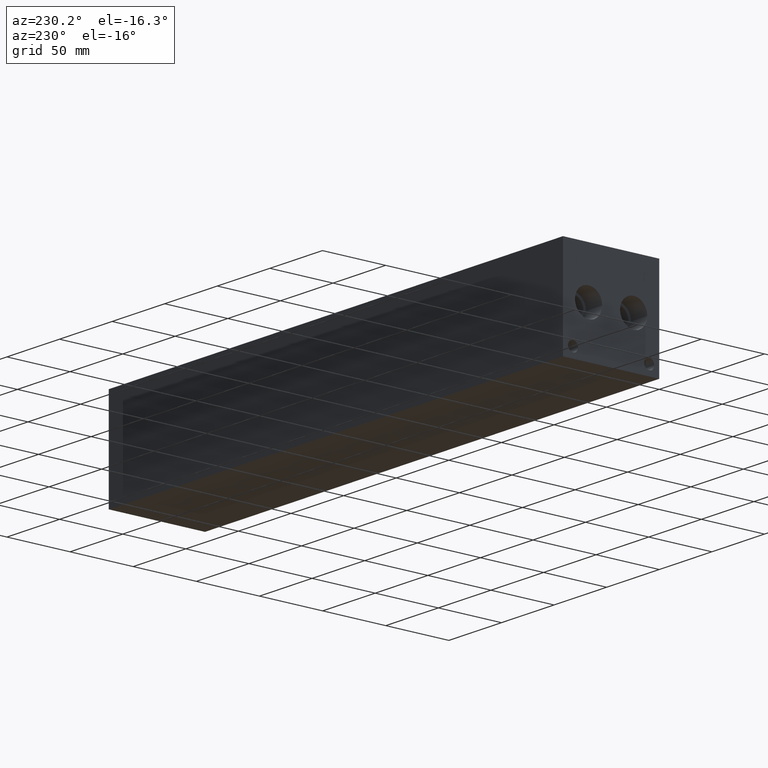
[diagram: clean part render]
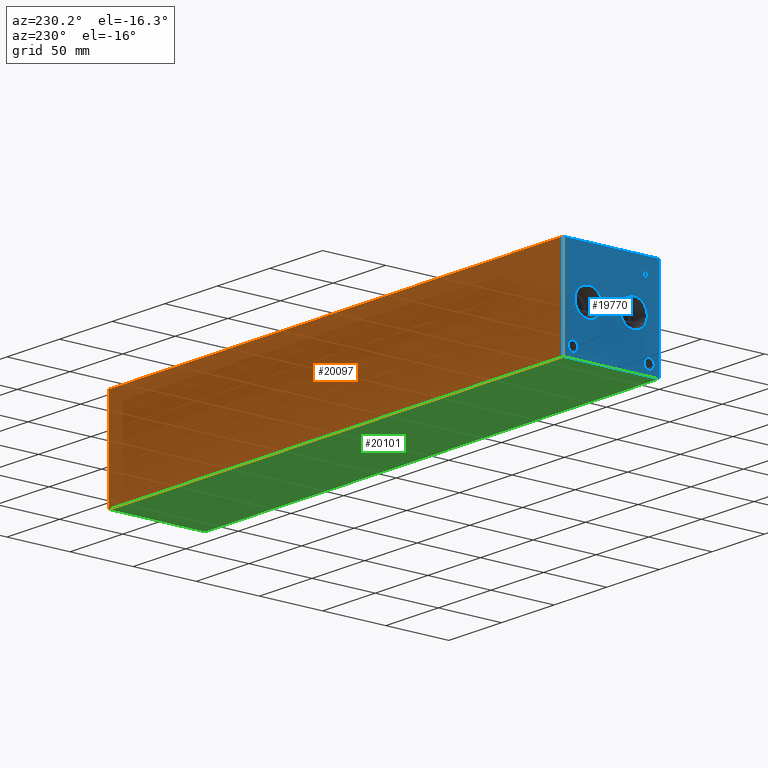
[diagram: same view with three faces highlighted in distinct colors, each labeled with its STEP entity id]
A machine part, auxiliary view with three faces highlighted in distinct colors.
Their STEP definitions:

[orange] entity #20097 — the highlighted planar face has unit normal (0, 1, 0).
#1607=PLANE('',#21478);
#2650=FACE_OUTER_BOUND('',#3852,.T.);
#3852=EDGE_LOOP('',(#17961,#17962,#17963,#17964));
#5292=LINE('',#32860,#7001);
#5352=LINE('',#33133,#7061);
#5636=LINE('',#34915,#7345);
#5637=LINE('',#34916,#7346);
#7001=VECTOR('',#23808,10.);
#7061=VECTOR('',#23922,10.);
#7345=VECTOR('',#25918,10.);
#7346=VECTOR('',#25919,10.);
#9103=VERTEX_POINT('',#32857);
#9104=VERTEX_POINT('',#32859);
#9161=VERTEX_POINT('',#33129);
#9162=VERTEX_POINT('',#33131);
#11680=EDGE_CURVE('',#9103,#9104,#5292,.T.);
#11764=EDGE_CURVE('',#9161,#9162,#5352,.T.);
#12577=EDGE_CURVE('',#9103,#9161,#5636,.T.);
#12578=EDGE_CURVE('',#9104,#9162,#5637,.T.);
#17961=ORIENTED_EDGE('',*,*,#12577,.T.);
#17962=ORIENTED_EDGE('',*,*,#11764,.T.);
#17963=ORIENTED_EDGE('',*,*,#12578,.F.);
#17964=ORIENTED_EDGE('',*,*,#11680,.F.);
#20097=ADVANCED_FACE('',(#2650),#1607,.T.);
#21478=AXIS2_PLACEMENT_3D('',#34914,#25916,#25917);
#23808=DIRECTION('',(0.,0.,1.));
#23922=DIRECTION('',(0.,0.,1.));
#25916=DIRECTION('center_axis',(0.,1.,0.));
#25917=DIRECTION('ref_axis',(-1.,0.,0.));
#25918=DIRECTION('',(-1.,0.,0.));
#25919=DIRECTION('',(-1.,0.,0.));
#32857=CARTESIAN_POINT('',(431.8,76.2,0.));
#32859=CARTESIAN_POINT('',(431.8,76.2,76.2));
#32860=CARTESIAN_POINT('',(431.8,76.2,0.));
#33129=CARTESIAN_POINT('',(0.,76.2,0.));
#33131=CARTESIAN_POINT('',(0.,76.2,76.2));
#33133=CARTESIAN_POINT('',(0.,76.2,0.));
#34914=CARTESIAN_POINT('Origin',(431.8,76.2,0.));
#34915=CARTESIAN_POINT('',(431.8,76.2,0.));
#34916=CARTESIAN_POINT('',(431.8,76.2,76.2));

[blue] entity #19770 — the highlighted planar face has unit normal (-1, 0, 0).
#315=CIRCLE('',#20623,10.795);
#316=CIRCLE('',#20624,10.795);
#317=CIRCLE('',#20625,10.795);
#318=CIRCLE('',#20626,10.795);
#319=CIRCLE('',#20627,3.9624);
#320=CIRCLE('',#20628,3.9624);
#321=CIRCLE('',#20629,3.9624);
#322=CIRCLE('',#20630,3.9624);
#940=FACE_BOUND('',#3463,.T.);
#941=FACE_BOUND('',#3464,.T.);
#942=FACE_BOUND('',#3465,.T.);
#943=FACE_BOUND('',#3466,.T.);
#944=FACE_BOUND('',#3467,.T.);
#945=FACE_BOUND('',#3468,.T.);
#1539=PLANE('',#20622);
#2323=FACE_OUTER_BOUND('',#3462,.T.);
#3462=EDGE_LOOP('',(#16419,#16420,#16421,#16422));
#3463=EDGE_LOOP('',(#16423,#16424));
#3464=EDGE_LOOP('',(#16425,#16426));
#3465=EDGE_LOOP('',(#16427,#16428));
#3466=EDGE_LOOP('',(#16429,#16430));
#3467=EDGE_LOOP('',(#16431,#16432,#16433,#16434,#16435,#16436,#16437,#16438));
#3468=EDGE_LOOP('',(#16439,#16440,#16441,#16442,#16443,#16444,#16445,#16446,
#16447));
#3976=LINE('',#26264,#5685);
#5334=LINE('',#33064,#7043);
#5337=LINE('',#33070,#7046);
#5340=LINE('',#33076,#7049);
#5343=LINE('',#33082,#7052);
#5346=LINE('',#33088,#7055);
#5350=LINE('',#33130,#7059);
#5351=LINE('',#33132,#7060);
#5352=LINE('',#33133,#7061);
#5353=LINE('',#33152,#7062);
#5354=LINE('',#33154,#7063);
#5355=LINE('',#33156,#7064);
#5356=LINE('',#33158,#7065);
#5357=LINE('',#33160,#7066);
#5358=LINE('',#33162,#7067);
#5359=LINE('',#33164,#7068);
#5360=LINE('',#33165,#7069);
#5685=VECTOR('',#21556,10.);
#7043=VECTOR('',#23892,10.);
#7046=VECTOR('',#23897,10.);
#7049=VECTOR('',#23902,10.);
#7052=VECTOR('',#23907,10.);
#7055=VECTOR('',#23912,10.);
#7059=VECTOR('',#23920,10.);
#7060=VECTOR('',#23921,10.);
#7061=VECTOR('',#23922,10.);
#7062=VECTOR('',#23939,10.);
#7063=VECTOR('',#23940,10.);
#7064=VECTOR('',#23941,10.);
#7065=VECTOR('',#23942,10.);
#7066=VECTOR('',#23943,10.);
#7067=VECTOR('',#23944,10.);
#7068=VECTOR('',#23945,10.);
#7069=VECTOR('',#23946,10.);
#7833=B_SPLINE_CURVE_WITH_KNOTS('',2,(#33031,#33032,#33033,#33034),
 .UNSPECIFIED.,.F.,.F.,(3,1,3),(0.,1.,2.),.UNSPECIFIED.);
#7835=B_SPLINE_CURVE_WITH_KNOTS('',2,(#33052,#33053,#33054,#33055),
 .UNSPECIFIED.,.F.,.F.,(3,1,3),(0.,1.,2.),.UNSPECIFIED.);
#7837=B_SPLINE_CURVE_WITH_KNOTS('',2,(#33101,#33102,#33103,#33104),
 .UNSPECIFIED.,.F.,.F.,(3,1,3),(0.,1.,2.),.UNSPECIFIED.);
#7839=B_SPLINE_CURVE_WITH_KNOTS('',2,(#33119,#33120,#33121,#33122),
 .UNSPECIFIED.,.F.,.F.,(3,1,3),(0.,1.,2.),.UNSPECIFIED.);
#7889=VERTEX_POINT('',#26257);
#7892=VERTEX_POINT('',#26262);
#9143=VERTEX_POINT('',#33029);
#9144=VERTEX_POINT('',#33030);
#9147=VERTEX_POINT('',#33051);
#9149=VERTEX_POINT('',#33063);
#9151=VERTEX_POINT('',#33069);
#9153=VERTEX_POINT('',#33075);
#9155=VERTEX_POINT('',#33081);
#9157=VERTEX_POINT('',#33087);
#9159=VERTEX_POINT('',#33100);
#9161=VERTEX_POINT('',#33129);
#9162=VERTEX_POINT('',#33131);
#9163=VERTEX_POINT('',#33134);
#9164=VERTEX_POINT('',#33135);
#9165=VERTEX_POINT('',#33138);
#9166=VERTEX_POINT('',#33139);
#9167=VERTEX_POINT('',#33142);
#9168=VERTEX_POINT('',#33143);
#9169=VERTEX_POINT('',#33146);
#9170=VERTEX_POINT('',#33147);
#9171=VERTEX_POINT('',#33150);
#9172=VERTEX_POINT('',#33151);
#9173=VERTEX_POINT('',#33153);
#9174=VERTEX_POINT('',#33155);
#9175=VERTEX_POINT('',#33157);
#9176=VERTEX_POINT('',#33159);
#9177=VERTEX_POINT('',#33161);
#9178=VERTEX_POINT('',#33163);
#9880=EDGE_CURVE('',#7889,#7892,#3976,.T.);
#11735=EDGE_CURVE('',#9143,#9144,#7833,.T.);
#11739=EDGE_CURVE('',#9147,#9143,#7835,.T.);
#11742=EDGE_CURVE('',#9149,#9147,#5334,.T.);
#11745=EDGE_CURVE('',#9151,#9149,#5337,.T.);
#11748=EDGE_CURVE('',#9153,#9151,#5340,.T.);
#11751=EDGE_CURVE('',#9155,#9153,#5343,.T.);
#11754=EDGE_CURVE('',#9157,#9155,#5346,.T.);
#11757=EDGE_CURVE('',#9159,#9157,#7837,.T.);
#11760=EDGE_CURVE('',#9144,#9159,#7839,.T.);
#11762=EDGE_CURVE('',#9161,#7889,#5350,.T.);
#11763=EDGE_CURVE('',#9162,#7892,#5351,.T.);
#11764=EDGE_CURVE('',#9161,#9162,#5352,.T.);
#11765=EDGE_CURVE('',#9163,#9164,#315,.T.);
#11766=EDGE_CURVE('',#9164,#9163,#316,.T.);
#11767=EDGE_CURVE('',#9165,#9166,#317,.T.);
#11768=EDGE_CURVE('',#9166,#9165,#318,.T.);
#11769=EDGE_CURVE('',#9167,#9168,#319,.T.);
#11770=EDGE_CURVE('',#9168,#9167,#320,.T.);
#11771=EDGE_CURVE('',#9169,#9170,#321,.T.);
#11772=EDGE_CURVE('',#9170,#9169,#322,.T.);
#11773=EDGE_CURVE('',#9171,#9172,#5353,.T.);
#11774=EDGE_CURVE('',#9172,#9173,#5354,.T.);
#11775=EDGE_CURVE('',#9173,#9174,#5355,.T.);
#11776=EDGE_CURVE('',#9174,#9175,#5356,.T.);
#11777=EDGE_CURVE('',#9175,#9176,#5357,.T.);
#11778=EDGE_CURVE('',#9176,#9177,#5358,.T.);
#11779=EDGE_CURVE('',#9177,#9178,#5359,.T.);
#11780=EDGE_CURVE('',#9178,#9171,#5360,.T.);
#16419=ORIENTED_EDGE('',*,*,#11762,.T.);
#16420=ORIENTED_EDGE('',*,*,#9880,.T.);
#16421=ORIENTED_EDGE('',*,*,#11763,.F.);
#16422=ORIENTED_EDGE('',*,*,#11764,.F.);
#16423=ORIENTED_EDGE('',*,*,#11765,.T.);
#16424=ORIENTED_EDGE('',*,*,#11766,.T.);
#16425=ORIENTED_EDGE('',*,*,#11767,.T.);
#16426=ORIENTED_EDGE('',*,*,#11768,.T.);
#16427=ORIENTED_EDGE('',*,*,#11769,.T.);
#16428=ORIENTED_EDGE('',*,*,#11770,.T.);
#16429=ORIENTED_EDGE('',*,*,#11771,.T.);
#16430=ORIENTED_EDGE('',*,*,#11772,.T.);
#16431=ORIENTED_EDGE('',*,*,#11773,.T.);
#16432=ORIENTED_EDGE('',*,*,#11774,.T.);
#16433=ORIENTED_EDGE('',*,*,#11775,.T.);
#16434=ORIENTED_EDGE('',*,*,#11776,.T.);
#16435=ORIENTED_EDGE('',*,*,#11777,.T.);
#16436=ORIENTED_EDGE('',*,*,#11778,.T.);
#16437=ORIENTED_EDGE('',*,*,#11779,.T.);
#16438=ORIENTED_EDGE('',*,*,#11780,.T.);
#16439=ORIENTED_EDGE('',*,*,#11735,.T.);
#16440=ORIENTED_EDGE('',*,*,#11760,.T.);
#16441=ORIENTED_EDGE('',*,*,#11757,.T.);
#16442=ORIENTED_EDGE('',*,*,#11754,.T.);
#16443=ORIENTED_EDGE('',*,*,#11751,.T.);
#16444=ORIENTED_EDGE('',*,*,#11748,.T.);
#16445=ORIENTED_EDGE('',*,*,#11745,.T.);
#16446=ORIENTED_EDGE('',*,*,#11742,.T.);
#16447=ORIENTED_EDGE('',*,*,#11739,.T.);
#19770=ADVANCED_FACE('',(#2323,#940,#941,#942,#943,#944,#945),#1539,.T.);
#20622=AXIS2_PLACEMENT_3D('',#33128,#23918,#23919);
#20623=AXIS2_PLACEMENT_3D('',#33136,#23923,#23924);
#20624=AXIS2_PLACEMENT_3D('',#33137,#23925,#23926);
#20625=AXIS2_PLACEMENT_3D('',#33140,#23927,#23928);
#20626=AXIS2_PLACEMENT_3D('',#33141,#23929,#23930);
#20627=AXIS2_PLACEMENT_3D('',#33144,#23931,#23932);
#20628=AXIS2_PLACEMENT_3D('',#33145,#23933,#23934);
#20629=AXIS2_PLACEMENT_3D('',#33148,#23935,#23936);
#20630=AXIS2_PLACEMENT_3D('',#33149,#23937,#23938);
#21556=DIRECTION('',(0.,0.,1.));
#23892=DIRECTION('',(0.,-1.,0.));
#23897=DIRECTION('',(0.,-3.14708893596576E-15,1.));
#23902=DIRECTION('',(0.,1.,0.));
#23907=DIRECTION('',(0.,3.75218139805001E-15,-1.));
#23912=DIRECTION('',(0.,1.,0.));
#23918=DIRECTION('center_axis',(-1.,0.,0.));
#23919=DIRECTION('ref_axis',(0.,-1.,0.));
#23920=DIRECTION('',(0.,-1.,0.));
#23921=DIRECTION('',(0.,-1.,0.));
#23922=DIRECTION('',(0.,0.,1.));
#23923=DIRECTION('center_axis',(1.,0.,0.));
#23924=DIRECTION('ref_axis',(0.,1.,0.));
#23925=DIRECTION('center_axis',(1.,0.,0.));
#23926=DIRECTION('ref_axis',(0.,1.,0.));
#23927=DIRECTION('center_axis',(1.,0.,0.));
#23928=DIRECTION('ref_axis',(0.,1.,0.));
#23929=DIRECTION('center_axis',(1.,0.,0.));
#23930=DIRECTION('ref_axis',(0.,1.,0.));
#23931=DIRECTION('center_axis',(1.,0.,0.));
#23932=DIRECTION('ref_axis',(0.,1.,0.));
#23933=DIRECTION('center_axis',(1.,0.,0.));
#23934=DIRECTION('ref_axis',(0.,1.,0.));
#23935=DIRECTION('center_axis',(1.,0.,0.));
#23936=DIRECTION('ref_axis',(0.,1.,0.));
#23937=DIRECTION('center_axis',(1.,0.,0.));
#23938=DIRECTION('ref_axis',(0.,1.,0.));
#23939=DIRECTION('',(0.,1.,1.05244112384329E-14));
#23940=DIRECTION('',(0.,-3.17280044688052E-15,1.));
#23941=DIRECTION('',(0.,1.,4.16909044227779E-15));
#23942=DIRECTION('',(0.,0.,1.));
#23943=DIRECTION('',(0.,-1.,-3.47984565141735E-15));
#23944=DIRECTION('',(0.,0.,-1.));
#23945=DIRECTION('',(0.,1.,0.));
#23946=DIRECTION('',(0.,3.17280044688052E-15,-1.));
#26257=CARTESIAN_POINT('',(0.,0.,0.));
#26262=CARTESIAN_POINT('',(0.,0.,76.2));
#26264=CARTESIAN_POINT('',(0.,0.,0.));
#33029=CARTESIAN_POINT('',(0.,9.59318279764059,65.4850181439707));
#33030=CARTESIAN_POINT('',(0.,8.83674034546799,63.966987372604));
#33031=CARTESIAN_POINT('Ctrl Pts',(0.,9.59318279764059,65.4850181439707));
#33032=CARTESIAN_POINT('Ctrl Pts',(0.,9.23811797315141,65.2431623939564));
#33033=CARTESIAN_POINT('Ctrl Pts',(0.,8.83674034546799,64.4970116758269));
#33034=CARTESIAN_POINT('Ctrl Pts',(0.,8.83674034546799,63.966987372604));
#33051=CARTESIAN_POINT('',(0.,11.2552978456117,65.8812499046326));
#33052=CARTESIAN_POINT('Ctrl Pts',(0.,11.2552978456117,65.8812499046326));
#33053=CARTESIAN_POINT('Ctrl Pts',(0.,10.6892524732376,65.8812499046326));
#33054=CARTESIAN_POINT('Ctrl Pts',(0.,9.89678895191394,65.6959986918556));
#33055=CARTESIAN_POINT('Ctrl Pts',(0.,9.59318279764059,65.4850181439707));
#33063=CARTESIAN_POINT('',(0.,12.8505166223022,65.8812499046326));
#33064=CARTESIAN_POINT('',(0.,44.5252583111511,65.8812499046326));
#33069=CARTESIAN_POINT('',(0.,12.8505166223022,59.53125));
#33070=CARTESIAN_POINT('',(0.,12.8505166223023,29.7656249999999));
#33075=CARTESIAN_POINT('',(0.,12.0065944307627,59.53125));
#33076=CARTESIAN_POINT('',(0.,44.1032972153814,59.53125));
#33081=CARTESIAN_POINT('',(0.,12.0065944307627,61.8983488299279));
#33082=CARTESIAN_POINT('',(0.,12.0065944307628,30.9491744149638));
#33087=CARTESIAN_POINT('',(0.,11.2913189147628,61.8983488299279));
#33088=CARTESIAN_POINT('',(0.,43.7456594573814,61.8983488299279));
#33100=CARTESIAN_POINT('',(0.,9.39249398379889,62.5570198086904));
#33101=CARTESIAN_POINT('Ctrl Pts',(0.,9.39249398379889,62.5570198086904));
#33102=CARTESIAN_POINT('Ctrl Pts',(0.,9.72182947318016,62.2328301863307));
#33103=CARTESIAN_POINT('Ctrl Pts',(0.,10.6120644679139,61.8983488299279));
#33104=CARTESIAN_POINT('Ctrl Pts',(0.,11.2913189147628,61.8983488299279));
#33119=CARTESIAN_POINT('Ctrl Pts',(0.,8.83674034546799,63.966987372604));
#33120=CARTESIAN_POINT('Ctrl Pts',(0.,8.83674034546799,63.5553180108774));
#33121=CARTESIAN_POINT('Ctrl Pts',(0.,9.13005476569819,62.8143131597695));
#33122=CARTESIAN_POINT('Ctrl Pts',(0.,9.39249398379889,62.5570198086904));
#33128=CARTESIAN_POINT('Origin',(0.,76.2,0.));
#33129=CARTESIAN_POINT('',(0.,76.2,0.));
#33130=CARTESIAN_POINT('',(0.,76.2,0.));
#33131=CARTESIAN_POINT('',(0.,76.2,76.2));
#33132=CARTESIAN_POINT('',(0.,76.2,76.2));
#33133=CARTESIAN_POINT('',(0.,76.2,0.));
#33134=CARTESIAN_POINT('',(0.,66.7512,38.1));
#33135=CARTESIAN_POINT('',(0.,45.1612,38.1));
#33136=CARTESIAN_POINT('Origin',(0.,55.9562,38.1));
#33137=CARTESIAN_POINT('Origin',(0.,55.9562,38.1));
#33138=CARTESIAN_POINT('',(0.,31.0388,38.1));
#33139=CARTESIAN_POINT('',(0.,9.4488,38.1));
#33140=CARTESIAN_POINT('Origin',(0.,20.2438,38.1));
#33141=CARTESIAN_POINT('Origin',(0.,20.2438,38.1));
#33142=CARTESIAN_POINT('',(0.,72.2376,7.92480000000001));
#33143=CARTESIAN_POINT('',(0.,64.3128,7.92480000000001));
#33144=CARTESIAN_POINT('Origin',(0.,68.2752,7.92480000000001));
#33145=CARTESIAN_POINT('Origin',(0.,68.2752,7.92480000000001));
#33146=CARTESIAN_POINT('',(0.,11.8872,7.92480000000001));
#33147=CARTESIAN_POINT('',(0.,3.9624,7.92480000000001));
#33148=CARTESIAN_POINT('Origin',(0.,7.9248,7.92480000000001));
#33149=CARTESIAN_POINT('Origin',(0.,7.9248,7.92480000000001));
#33150=CARTESIAN_POINT('',(0.,65.293334728547,59.53125));
#33151=CARTESIAN_POINT('',(0.,66.1372569200865,59.53125));
#33152=CARTESIAN_POINT('',(0.,70.7466673642732,59.5312500000001));
#33153=CARTESIAN_POINT('',(0.,66.1372569200865,65.1299533194816));
#33154=CARTESIAN_POINT('',(0.,66.1372569200866,29.765625));
#33155=CARTESIAN_POINT('',(0.,68.2676458670216,65.1299533194816));
#33156=CARTESIAN_POINT('',(0.,71.1686284600431,65.1299533194816));
#33157=CARTESIAN_POINT('',(0.,68.2676458670216,65.8812499046326));
#33158=CARTESIAN_POINT('',(0.,68.2676458670216,32.5649766597408));
#33159=CARTESIAN_POINT('',(0.,63.1629457816119,65.8812499046326));
#33160=CARTESIAN_POINT('',(0.,72.2338229335107,65.8812499046326));
#33161=CARTESIAN_POINT('',(0.,63.1629457816119,65.1299533194816));
#33162=CARTESIAN_POINT('',(0.,63.1629457816119,32.9406249523163));
#33163=CARTESIAN_POINT('',(0.,65.293334728547,65.1299533194816));
#33164=CARTESIAN_POINT('',(0.,69.681472890806,65.1299533194816));
#33165=CARTESIAN_POINT('',(0.,65.2933347285471,32.5649766597408));

[green] entity #20101 — the highlighted planar face has unit normal (0, 0, 1).
#1611=PLANE('',#21482);
#2654=FACE_OUTER_BOUND('',#3928,.T.);
#3928=EDGE_LOOP('',(#18123,#18124,#18125,#18126));
#3973=LINE('',#26259,#5682);
#5291=LINE('',#32858,#7000);
#5350=LINE('',#33130,#7059);
#5636=LINE('',#34915,#7345);
#5682=VECTOR('',#21553,10.);
#7000=VECTOR('',#23807,10.);
#7059=VECTOR('',#23920,10.);
#7345=VECTOR('',#25918,10.);
#7889=VERTEX_POINT('',#26257);
#7890=VERTEX_POINT('',#26258);
#9103=VERTEX_POINT('',#32857);
#9161=VERTEX_POINT('',#33129);
#9877=EDGE_CURVE('',#7889,#7890,#3973,.T.);
#11679=EDGE_CURVE('',#7890,#9103,#5291,.T.);
#11762=EDGE_CURVE('',#9161,#7889,#5350,.T.);
#12577=EDGE_CURVE('',#9103,#9161,#5636,.T.);
#18123=ORIENTED_EDGE('',*,*,#9877,.F.);
#18124=ORIENTED_EDGE('',*,*,#11762,.F.);
#18125=ORIENTED_EDGE('',*,*,#12577,.F.);
#18126=ORIENTED_EDGE('',*,*,#11679,.F.);
#20101=ADVANCED_FACE('',(#2654),#1611,.F.);
#21482=AXIS2_PLACEMENT_3D('',#34920,#25926,#25927);
#21553=DIRECTION('',(1.,0.,0.));
#23807=DIRECTION('',(0.,1.,0.));
#23920=DIRECTION('',(0.,-1.,0.));
#25918=DIRECTION('',(-1.,0.,0.));
#25926=DIRECTION('center_axis',(0.,0.,1.));
#25927=DIRECTION('ref_axis',(1.,0.,0.));
#26257=CARTESIAN_POINT('',(0.,0.,0.));
#26258=CARTESIAN_POINT('',(431.8,0.,0.));
#26259=CARTESIAN_POINT('',(0.,0.,0.));
#32857=CARTESIAN_POINT('',(431.8,76.2,0.));
#32858=CARTESIAN_POINT('',(431.8,0.,0.));
#33129=CARTESIAN_POINT('',(0.,76.2,0.));
#33130=CARTESIAN_POINT('',(0.,76.2,0.));
#34915=CARTESIAN_POINT('',(431.8,76.2,0.));
#34920=CARTESIAN_POINT('Origin',(215.9,38.1,0.));